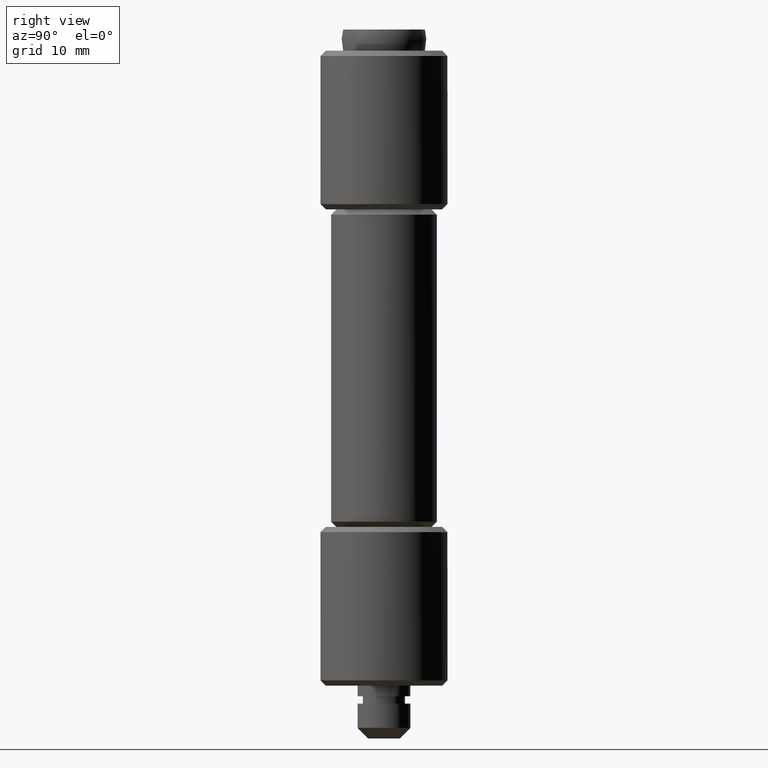
[diagram: clean part render]
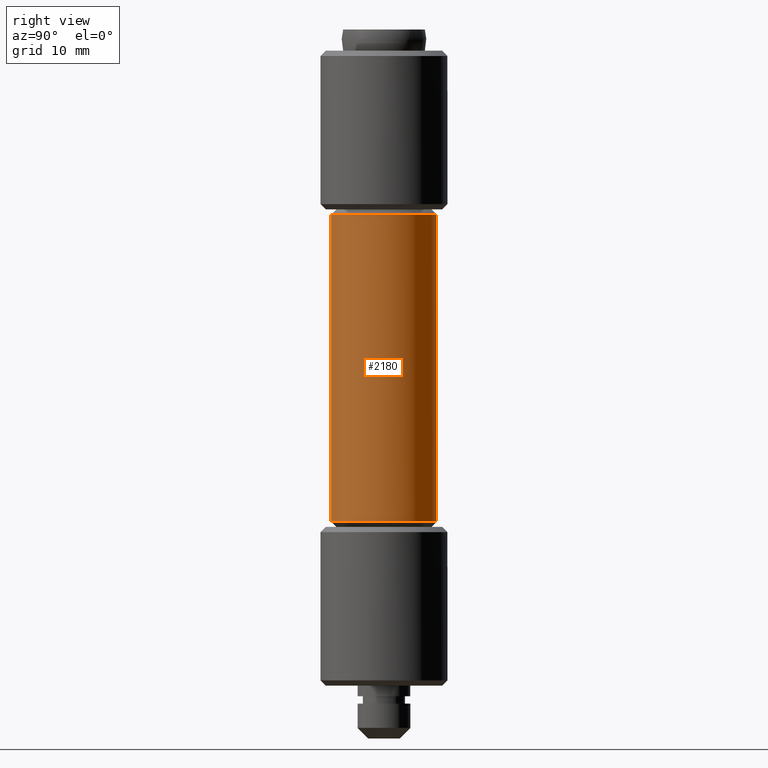
[diagram: same view with one face highlighted and labeled with its STEP entity id]
A machine part, right view. The second image highlights one B-rep face of the part: STEP entity #2180.
In plain terms, the highlighted face is a freeform B-spline surface patch.
Its self-contained STEP definition (entity closure, byte-faithful):
#1753=CARTESIAN_POINT('',(0.620640010452552,4.961331069121012,49.500000000000000));
#1754=VERTEX_POINT('',#1753);
#1811=CARTESIAN_POINT('',(-0.043632677539347,-4.999809615320393,49.500000000000043));
#1812=VERTEX_POINT('',#1811);
#1818=CARTESIAN_POINT('',(5.0,0.0,49.500000000000000));
#1819=VERTEX_POINT('',#1818);
#1820=CARTESIAN_POINT('',(5.0,0.0,49.500000000000000));
#1821=CARTESIAN_POINT('',(5.000000000000001,-5.000000000000001,49.499999999999993));
#1822=CARTESIAN_POINT('',(0.0,-5.0,49.500000000000000));
#1823=CARTESIAN_POINT('',(-0.021816754198458,-5.0,49.500000000000000));
#1824=CARTESIAN_POINT('',(-0.043632677539347,-4.999809615320393,49.500000000000043));
#1832=(BOUNDED_CURVE()B_SPLINE_CURVE(2,(#1820,#1821,#1822,#1823,#1824),.UNSPECIFIED.,.F.,.U.)B_SPLINE_CURVE_WITH_KNOTS((3,2,3),(0.500000000000000,0.750000000000000,0.751539894341677),.UNSPECIFIED.)CURVE()GEOMETRIC_REPRESENTATION_ITEM()RATIONAL_B_SPLINE_CURVE((1.0,0.707106781186548,1.0,0.998195901558535,0.996414028084924))REPRESENTATION_ITEM(''));
#1833=EDGE_CURVE('',#1819,#1812,#1832,.T.);
#1835=CARTESIAN_POINT('',(0.620640010452552,4.961331069121012,49.500000000000007));
#1836=CARTESIAN_POINT('',(5.000000000000001,4.413493000655387,49.500000000000000));
#1837=CARTESIAN_POINT('',(5.0,0.0,49.500000000000000));
#1845=(BOUNDED_CURVE()B_SPLINE_CURVE(2,(#1835,#1836,#1837),.UNSPECIFIED.,.F.,.U.)B_SPLINE_CURVE_WITH_KNOTS((3,3),(0.271473928974332,0.500000000000000),.UNSPECIFIED.)CURVE()GEOMETRIC_REPRESENTATION_ITEM()RATIONAL_B_SPLINE_CURVE((0.954005430267673,0.732265053898002,1.0))REPRESENTATION_ITEM(''));
#1846=EDGE_CURVE('',#1754,#1819,#1845,.T.);
#2036=CARTESIAN_POINT('',(0.620640010475305,4.961331069118167,20.500000000000000));
#2037=VERTEX_POINT('',#2036);
#2053=CARTESIAN_POINT('',(5.0,0.0,20.500000000000000));
#2054=VERTEX_POINT('',#2053);
#2055=CARTESIAN_POINT('',(5.0,0.0,20.500000000000000));
#2056=CARTESIAN_POINT('',(4.999999999999999,4.413493000614615,20.500000000000007));
#2057=CARTESIAN_POINT('',(0.620640010475305,4.961331069118168,20.500000000000011));
#2065=(BOUNDED_CURVE()B_SPLINE_CURVE(2,(#2055,#2056,#2057),.UNSPECIFIED.,.F.,.U.)B_SPLINE_CURVE_WITH_KNOTS((3,3),(0.500000000000000,0.728526071024122),.UNSPECIFIED.)CURVE()GEOMETRIC_REPRESENTATION_ITEM()RATIONAL_B_SPLINE_CURVE((1.0,0.732265053899813,0.954005430264673))REPRESENTATION_ITEM(''));
#2066=EDGE_CURVE('',#2054,#2037,#2065,.T.);
#2068=CARTESIAN_POINT('',(-0.043632677575075,-4.999809615320130,20.500000000000000));
#2069=VERTEX_POINT('',#2068);
#2070=CARTESIAN_POINT('',(-0.043632677575075,-4.999809615320130,20.500000000000004));
#2071=CARTESIAN_POINT('',(-0.021816754186718,-5.0,20.500000000000007));
#2072=CARTESIAN_POINT('',(0.0,-5.0,20.500000000000000));
#2073=CARTESIAN_POINT('',(5.000000000000001,-5.000000000000001,20.500000000000007));
#2074=CARTESIAN_POINT('',(5.0,0.0,20.500000000000000));
#2082=(BOUNDED_CURVE()B_SPLINE_CURVE(2,(#2070,#2071,#2072,#2073,#2074),.UNSPECIFIED.,.F.,.U.)B_SPLINE_CURVE_WITH_KNOTS((3,2,3),(0.248460105659150,0.250000000000000,0.500000000000000),.UNSPECIFIED.)CURVE()GEOMETRIC_REPRESENTATION_ITEM()RATIONAL_B_SPLINE_CURVE((0.996414028086838,0.998195901559504,1.0,0.707106781186548,1.0))REPRESENTATION_ITEM(''));
#2083=EDGE_CURVE('',#2069,#2054,#2082,.T.);
#2146=CARTESIAN_POINT('',(0.620640010399146,4.961331069127693,50.224999999999994));
#2147=CARTESIAN_POINT('',(5.038664152512223,4.408656290666105,50.225000000000009));
#2148=CARTESIAN_POINT('',(4.999809615320855,-0.043632677491869,50.225000000000009));
#2149=CARTESIAN_POINT('',(4.956176937828985,-5.043442292812725,50.225000000000016));
#2150=CARTESIAN_POINT('',(-0.043632677491869,-4.999809615320855,50.225000000000009));
#2151=CARTESIAN_POINT('',(0.620640010399146,4.961331069127693,19.756874999999997));
#2152=CARTESIAN_POINT('',(5.038664152512223,4.408656290666105,19.756875000000004));
#2153=CARTESIAN_POINT('',(4.999809615320855,-0.043632677491869,19.756875000000001));
#2154=CARTESIAN_POINT('',(4.956176937828985,-5.043442292812725,19.756874999999997));
#2155=CARTESIAN_POINT('',(-0.043632677491869,-4.999809615320855,19.756875000000001));
#2163=(BOUNDED_SURFACE()B_SPLINE_SURFACE(2,1,((#2146,#2151),(#2147,#2152),(#2148,#2153),(#2149,#2154),(#2150,#2155)),.UNSPECIFIED.,.F.,.F.,.U.)B_SPLINE_SURFACE_WITH_KNOTS((3,2,3),(2,2),(0.0,7.621529547664946,15.905800795126851),(0.0,30.468125000000011),.UNSPECIFIED.)GEOMETRIC_REPRESENTATION_ITEM()RATIONAL_B_SPLINE_SURFACE(((0.956886118190660,0.956886118190660),(0.730538238691624,0.730538238691624),(1.0,1.0),(0.707106781186548,0.707106781186548),(1.0,1.0)))REPRESENTATION_ITEM('')SURFACE());
#2164=ORIENTED_EDGE('',*,*,#1846,.T.);
#2165=ORIENTED_EDGE('',*,*,#1833,.T.);
#2166=CARTESIAN_POINT('',(-0.043632677539347,-4.999809615320393,49.500000000000043));
#2167=CARTESIAN_POINT('',(-0.043632677575075,-4.999809615320130,20.500000000000000));
#2168=QUASI_UNIFORM_CURVE('',1,(#2166,#2167),.UNSPECIFIED.,.F.,.U.);
#2169=EDGE_CURVE('',#1812,#2069,#2168,.T.);
#2170=ORIENTED_EDGE('',*,*,#2169,.T.);
#2171=ORIENTED_EDGE('',*,*,#2083,.T.);
#2172=ORIENTED_EDGE('',*,*,#2066,.T.);
#2173=CARTESIAN_POINT('',(0.620640010452552,4.961331069121012,49.500000000000000));
#2174=CARTESIAN_POINT('',(0.620640010475305,4.961331069118167,20.500000000000000));
#2175=QUASI_UNIFORM_CURVE('',1,(#2173,#2174),.UNSPECIFIED.,.F.,.U.);
#2176=EDGE_CURVE('',#1754,#2037,#2175,.T.);
#2177=ORIENTED_EDGE('',*,*,#2176,.F.);
#2178=EDGE_LOOP('',(#2164,#2165,#2170,#2171,#2172,#2177));
#2179=FACE_OUTER_BOUND('',#2178,.T.);
#2180=ADVANCED_FACE('',(#2179),#2163,.T.);